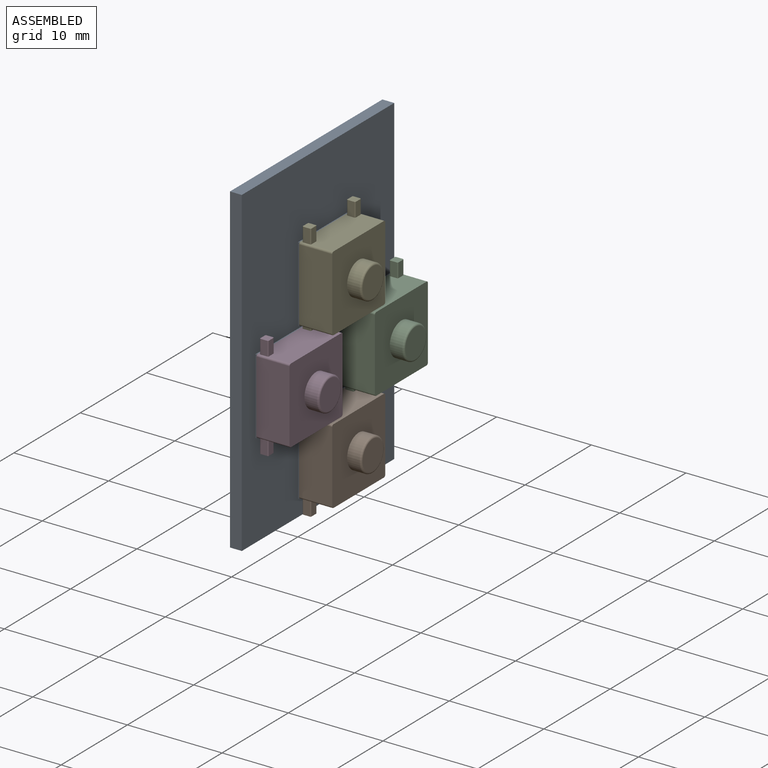
[diagram: assembled view]
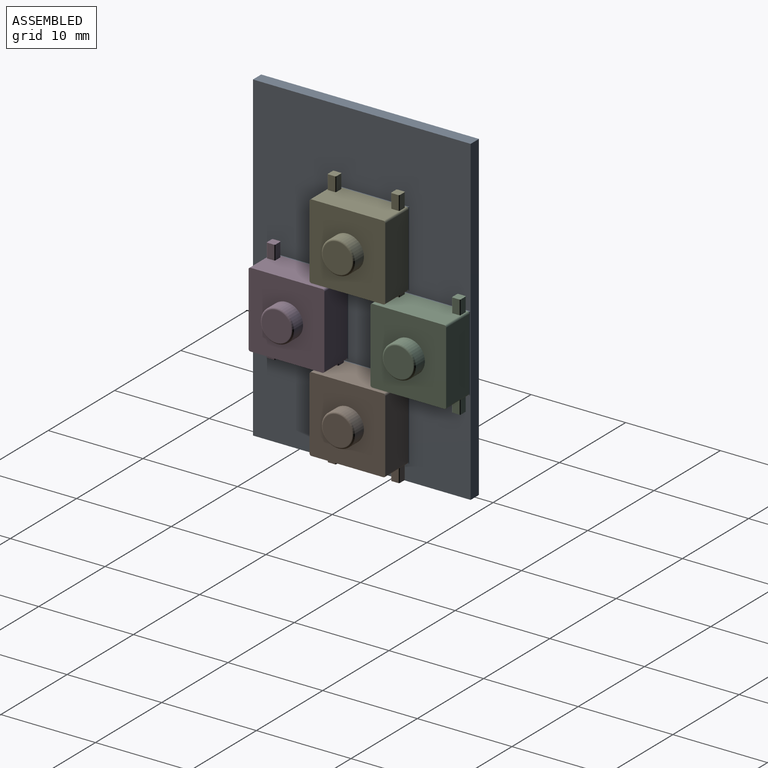
[diagram: assembled view, second angle]
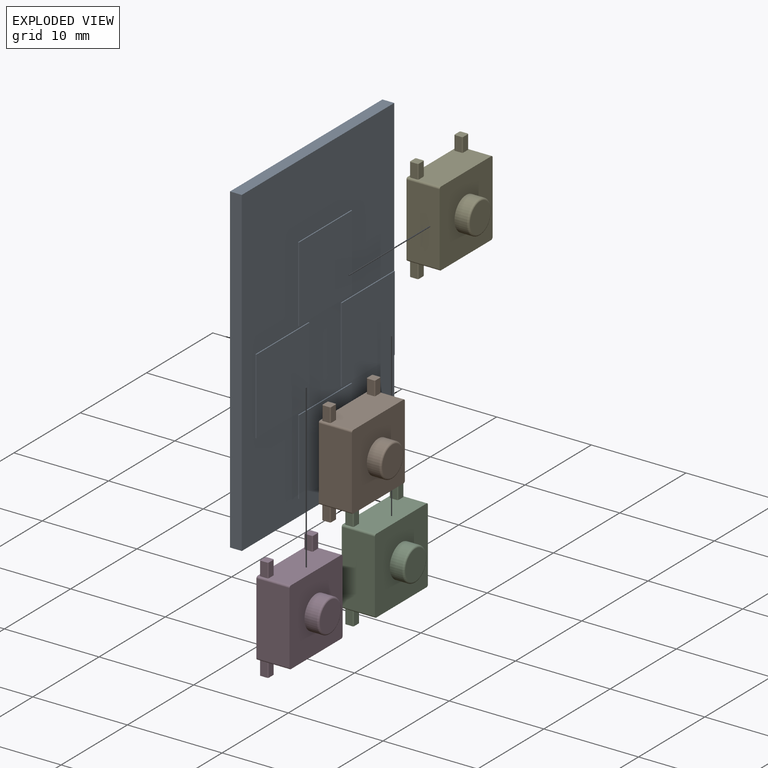
[diagram: exploded view]
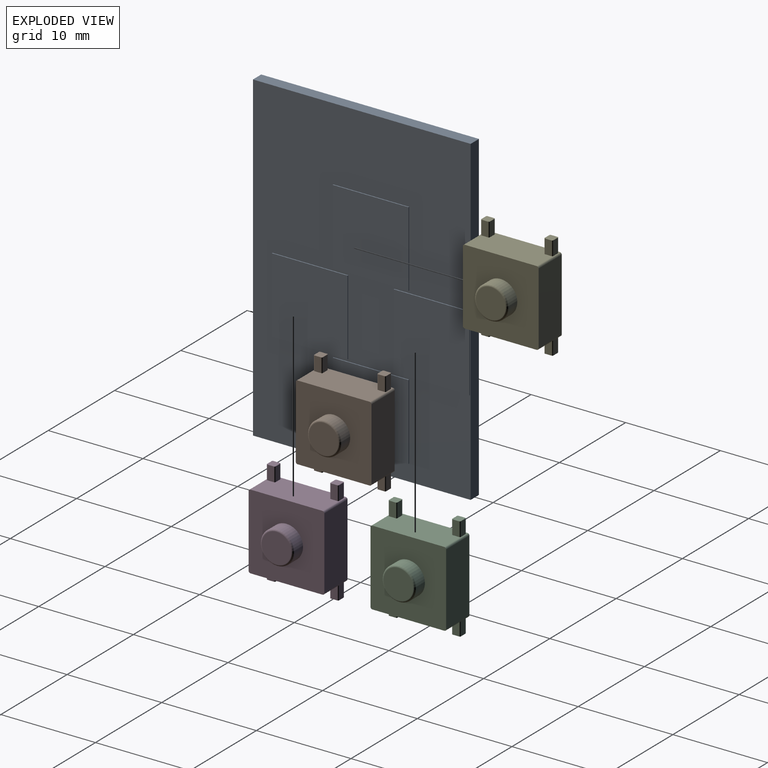
[diagram: exploded view, second angle]
ASSEMBLY  parts=5 mates=12
PART A: 26 faces, bbox 1.4x23x34 mm
  f0: plane 34x23mm, normal (1,0,0), area 526mm2, adj f1,f2,f3,f4,f6,f7,f8,f9
  f1: plane 23x1.25mm, normal (0,0,1), area 28.8mm2, adj f0,f2,f4,f5
  f2: plane 34x1.25mm, normal (0,-1,0), area 42.5mm2, adj f0,f1,f3,f5
  f3: plane 23x1.25mm, normal (0,0,-1), area 28.8mm2, adj f0,f2,f4,f5
  f4: plane 34x1.25mm, normal (0,1,0), area 42.5mm2, adj f0,f1,f3,f5
  f5: plane 34x23mm, normal (-1,0,0), area 782mm2, adj f1,f2,f3,f4
  f6: plane 8x0.1mm, normal (0,0,1), area 0.8mm2, adj f0,f7,f9,f10
  f7: plane 8x0.1mm, normal (0,-1,0), area 0.8mm2, adj f0,f6,f8,f10
  f8: plane 8x0.1mm, normal (0,0,-1), area 0.8mm2, adj f0,f7,f9,f10
  f9: plane 8x0.1mm, normal (0,1,0), area 0.8mm2, adj f0,f6,f8,f10
  f10: plane 8x8mm, normal (1,0,0), area 64mm2, adj f6,f7,f8,f9
  f11: plane 8x0.1mm, normal (0,0,1), area 0.8mm2, adj f0,f12,f14,f15
  f12: plane 8x0.1mm, normal (0,-1,0), area 0.8mm2, adj f0,f11,f13,f15
  f13: plane 8x0.1mm, normal (0,0,-1), area 0.8mm2, adj f0,f12,f14,f15
  f14: plane 8x0.1mm, normal (0,1,0), area 0.8mm2, adj f0,f11,f13,f15
  f15: plane 8x8mm, normal (1,0,0), area 64mm2, adj f11,f12,f13,f14
  f16: plane 8x0.1mm, normal (0,0,1), area 0.8mm2, adj f0,f17,f19,f20
  f17: plane 8x0.1mm, normal (0,-1,0), area 0.8mm2, adj f0,f16,f18,f20
  f18: plane 8x0.1mm, normal (0,0,-1), area 0.8mm2, adj f0,f17,f19,f20
  f19: plane 8x0.1mm, normal (0,1,0), area 0.8mm2, adj f0,f16,f18,f20
  f20: plane 8x8mm, normal (1,0,0), area 64mm2, adj f16,f17,f18,f19
  f21: plane 8x0.1mm, normal (0,0,1), area 0.8mm2, adj f0,f22,f24,f25
  f22: plane 8x0.1mm, normal (0,-1,0), area 0.8mm2, adj f0,f21,f23,f25
  f23: plane 8x0.1mm, normal (0,0,-1), area 0.8mm2, adj f0,f22,f24,f25
  f24: plane 8x0.1mm, normal (0,1,0), area 0.8mm2, adj f0,f21,f23,f25
  f25: plane 8x8mm, normal (1,0,0), area 64mm2, adj f21,f22,f23,f24
PART B: 49 faces, bbox 5x8x11 mm
  f0: plane 7.6x3.5mm, normal (0,0,-1), area 25mm2, adj f4,f5,f10,f11,f32,f33,f34,f35
  f1: plane 7.6x3.5mm, normal (0,0,1), area 25mm2, adj f4,f5,f9,f12,f14,f15,f16,f17
  f2: plane 7.6x3.5mm, normal (0,-1,0), area 26.6mm2, adj f4,f5,f9,f10
  f3: plane 7.6x3.5mm, normal (0,1,0), area 26.6mm2, adj f4,f5,f11,f12
  f4: plane 8x8mm, normal (1,0,0), area 54.3mm2, adj f0,f1,f2,f3,f6,f9,f10,f11
  f5: plane 8x8mm, normal (-1,0,0), area 64mm2, adj f0,f1,f2,f3,f9,f10,f11,f12
  f6: cylinder r=1.75mm len=3.5mm, axis (-1,0,0), area 14.3mm2, adj f4,f8
  f7: plane 3.1x3.1mm, normal (1,0,0), area 7.5mm2, adj f8
  f8: torus R=1.55mm, axis (1,0,0), area 3.3mm2, adj f6,f7
  f9: cylinder r=0.2mm len=3.5mm, axis (1,0,0), area 1.1mm2, adj f1,f2,f4,f5,f13
  f10: cylinder r=0.2mm len=3.5mm, axis (-1,0,0), area 1.1mm2, adj f0,f2,f4,f5,f31
  f11: cylinder r=0.2mm len=3.5mm, axis (1,0,0), area 1.1mm2, adj f0,f3,f4,f5,f41
  f12: cylinder r=0.2mm len=3.5mm, axis (-1,0,0), area 1.1mm2, adj f1,f3,f4,f5,f29
  f13: plane 1.5x0.7mm, normal (0,-1,0), area 1mm2, adj f9,f14,f20,f21
  f14: cylinder r=0.1mm len=1.5mm, axis (0,0,-1), area 0.2mm2, adj f1,f13,f15,f21
  f15: plane 1.5x0.7mm, normal (1,0,0), area 1.1mm2, adj f1,f14,f16,f21
  f16: cylinder r=0.1mm len=1.5mm, axis (0,0,-1), area 0.2mm2, adj f1,f15,f17,f21
  f17: plane 1.5x0.7mm, normal (0,1,0), area 1mm2, adj f1,f16,f18,f21
  f18: cylinder r=0.1mm len=1.5mm, axis (0,0,-1), area 0.2mm2, adj f1,f17,f19,f21
  f19: plane 1.5x0.7mm, normal (-1,0,0), area 1.1mm2, adj f1,f18,f20,f21
  f20: cylinder r=0.1mm len=1.5mm, axis (0,0,-1), area 0.2mm2, adj f1,f13,f19,f21
  f21: plane 0.9x0.9mm, normal (0,0,1), area 0.8mm2, adj f13,f14,f15,f16,f17,f18,f19,f20
  f22: cylinder r=0.1mm len=1.5mm, axis (0,0,-1), area 0.2mm2, adj f1,f23,f29,f30
  f23: plane 1.5x0.7mm, normal (-1,0,0), area 1.1mm2, adj f1,f22,f24,f30
  f24: cylinder r=0.1mm len=1.5mm, axis (0,0,-1), area 0.2mm2, adj f1,f23,f25,f30
  f25: plane 1.5x0.7mm, normal (0,-1,0), area 1mm2, adj f1,f24,f26,f30
  f26: cylinder r=0.1mm len=1.5mm, axis (0,0,-1), area 0.2mm2, adj f1,f25,f27,f30
  f27: plane 1.5x0.7mm, normal (1,0,0), area 1.1mm2, adj f1,f26,f28,f30
  f28: cylinder r=0.1mm len=1.5mm, axis (0,0,-1), area 0.2mm2, adj f1,f27,f29,f30
  f29: plane 1.5x0.7mm, normal (0,1,0), area 1mm2, adj f12,f22,f28,f30
  f30: plane 0.9x0.9mm, normal (0,0,1), area 0.8mm2, adj f22,f23,f24,f25,f26,f27,f28,f29
  f31: plane 1.5x0.7mm, normal (0,-1,0), area 1mm2, adj f10,f32,f38,f39
  f32: cylinder r=0.1mm len=1.5mm, axis (0,0,1), area 0.2mm2, adj f0,f31,f33,f39
  f33: plane 1.5x0.7mm, normal (-1,0,0), area 1.1mm2, adj f0,f32,f34,f39
  f34: cylinder r=0.1mm len=1.5mm, axis (0,0,1), area 0.2mm2, adj f0,f33,f35,f39
  f35: plane 1.5x0.7mm, normal (0,1,0), area 1mm2, adj f0,f34,f36,f39
  f36: cylinder r=0.1mm len=1.5mm, axis (0,0,1), area 0.2mm2, adj f0,f35,f37,f39
  f37: plane 1.5x0.7mm, normal (1,0,0), area 1.1mm2, adj f0,f36,f38,f39
  f38: cylinder r=0.1mm len=1.5mm, axis (0,0,1), area 0.2mm2, adj f0,f31,f37,f39
  f39: plane 0.9x0.9mm, normal (0,0,-1), area 0.8mm2, adj f31,f32,f33,f34,f35,f36,f37,f38
  f40: cylinder r=0.1mm len=1.5mm, axis (0,0,1), area 0.2mm2, adj f0,f41,f47,f48
  f41: plane 1.5x0.7mm, normal (0,1,0), area 1mm2, adj f11,f40,f42,f48
  f42: cylinder r=0.1mm len=1.5mm, axis (0,0,1), area 0.2mm2, adj f0,f41,f43,f48
  f43: plane 1.5x0.7mm, normal (1,0,0), area 1.1mm2, adj f0,f42,f44,f48
  f44: cylinder r=0.1mm len=1.5mm, axis (0,0,1), area 0.2mm2, adj f0,f43,f45,f48
  f45: plane 1.5x0.7mm, normal (0,-1,0), area 1mm2, adj f0,f44,f46,f48
  f46: cylinder r=0.1mm len=1.5mm, axis (0,0,1), area 0.2mm2, adj f0,f45,f47,f48
  f47: plane 1.5x0.7mm, normal (-1,0,0), area 1.1mm2, adj f0,f40,f46,f48
  f48: plane 0.9x0.9mm, normal (0,0,-1), area 0.8mm2, adj f40,f41,f42,f43,f44,f45,f46,f47
PART C: same geometry as B
PART D: same geometry as B
PART E: same geometry as B
PLACE A t=(-16.57,-7.02,-0.97)mm
PLACE B t=(-14.09,-6.02,-12.22)mm
PLACE C t=(-14.09,0.41,-3.97)mm
PLACE D t=(-14.09,-12.46,-3.97)mm
PLACE E t=(-14.09,-6.02,4.28)mm
MATE planar D.f0 <-> A.f8  axis (0,0,-1) through (-14.02,-12.46,-7.97)mm
MATE planar D.f6 <-> A.f10  axis (-1,0,0) through (-15.84,-12.46,-3.97)mm
MATE planar C.f0 <-> A.f13  axis (0,0,-1) through (-14.02,0.41,-7.97)mm
MATE planar D.f2 <-> A.f7  axis (0,-1,0) through (-14.09,-16.46,-3.97)mm
MATE planar E.f2 <-> A.f17  axis (0,-1,0) through (-14.09,-10.02,4.28)mm
MATE planar B.f6 <-> A.f25  axis (-1,0,0) through (-15.84,-6.02,-12.22)mm
MATE planar B.f0 <-> A.f23  axis (0,0,-1) through (-14.02,-6.02,-16.22)mm
MATE planar E.f1 <-> A.f16  axis (0,0,1) through (-14.02,-6.02,8.28)mm
MATE planar B.f2 <-> A.f22  axis (0,-1,0) through (-14.09,-10.02,-12.22)mm
MATE planar E.f6 <-> A.f20  axis (-1,0,0) through (-15.84,-6.02,4.28)mm
MATE planar C.f3 <-> A.f14  axis (0,1,0) through (-14.09,4.41,-3.97)mm
MATE planar C.f6 <-> A.f15  axis (-1,0,0) through (-15.84,0.41,-3.97)mm
